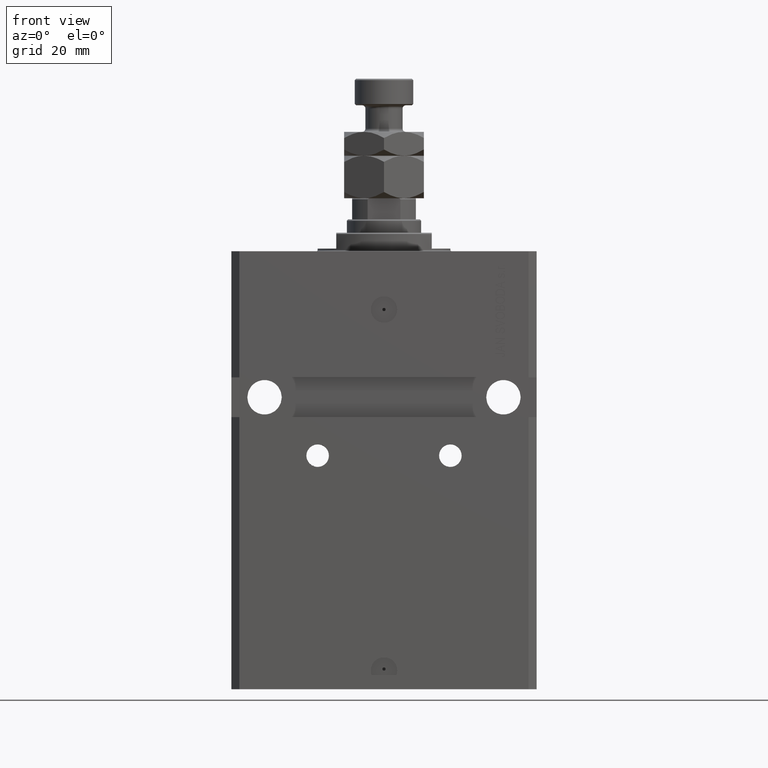
[diagram: clean part render]
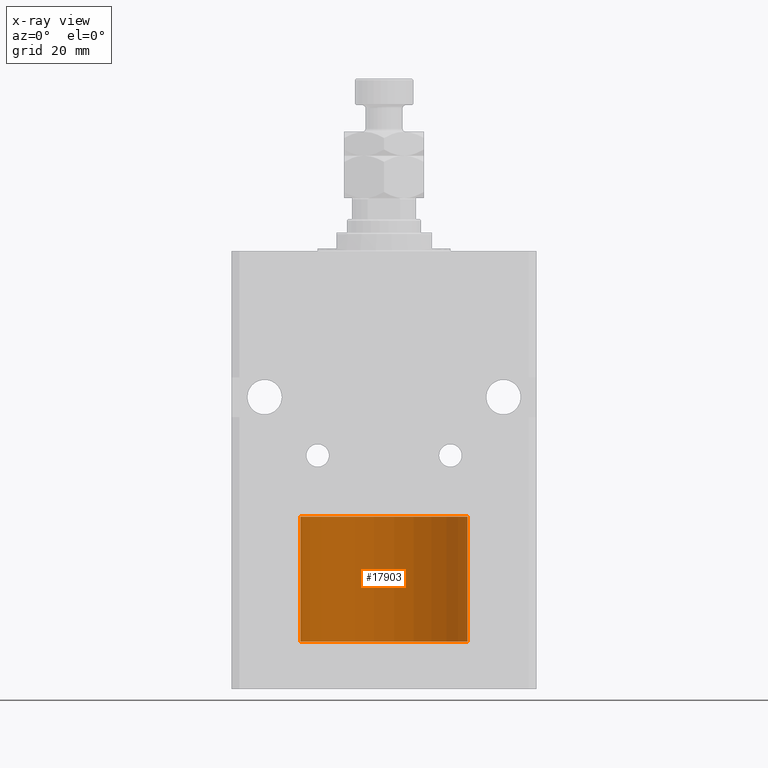
[diagram: x-ray — body ghosted, one internal face saturated and labeled with its STEP entity id]
A machine part, front view, then the same camera in x-ray: the body is ghosted and one INTERNAL B-rep face — a face not visible from any outside direction — is saturated and labeled: STEP entity #17903.
In plain terms, the highlighted cylindrical surface (partial cylindrical patch) has radius 31.5 mm, axis along (-0, -0, -1).
Its self-contained STEP definition (entity closure, byte-faithful):
#1064 = DIRECTION ( 'NONE',  ( 0.000000000000000000, 0.000000000000000000, 1.000000000000000000 ) ) ;
#1076 = CIRCLE ( 'NONE', #25297, 31.50000000000000000 ) ;
#1525 = CYLINDRICAL_SURFACE ( 'NONE', #34729, 31.50000000000000000 ) ;
#2858 = VECTOR ( 'NONE', #10390, 1000.000000000000000 ) ;
#3049 = DIRECTION ( 'NONE',  ( -0.000000000000000000, -0.000000000000000000, -1.000000000000000000 ) ) ;
#5101 = VERTEX_POINT ( 'NONE', #13347 ) ;
#6321 = DIRECTION ( 'NONE',  ( 0.000000000000000000, 0.000000000000000000, 1.000000000000000000 ) ) ;
#6695 = LINE ( 'NONE', #22849, #37619 ) ;
#9582 = DIRECTION ( 'NONE',  ( -1.000000000000000000, 0.000000000000000000, 0.000000000000000000 ) ) ;
#9624 = LINE ( 'NONE', #37992, #2858 ) ;
#10390 = DIRECTION ( 'NONE',  ( -0.000000000000000000, -0.000000000000000000, -1.000000000000000000 ) ) ;
#10554 = ORIENTED_EDGE ( 'NONE', *, *, #32224, .T. ) ;
#11259 = DIRECTION ( 'NONE',  ( 1.000000000000000000, 0.000000000000000000, 0.000000000000000000 ) ) ;
#12393 = CARTESIAN_POINT ( 'NONE',  ( -31.50000000000000000, 0.000000000000000000, 0.000000000000000000 ) ) ;
#13347 = CARTESIAN_POINT ( 'NONE',  ( 31.50000000000000000, 3.857637417314162689E-15, 0.000000000000000000 ) ) ;
#15312 = CIRCLE ( 'NONE', #39428, 31.50000000000000000 ) ;
#17903 = ADVANCED_FACE ( 'NONE', ( #50148 ), #1525, .T. ) ;
#19517 = ORIENTED_EDGE ( 'NONE', *, *, #49913, .F. ) ;
#21103 = CARTESIAN_POINT ( 'NONE',  ( 0.000000000000000000, 0.000000000000000000, 47.10000000000000142 ) ) ;
#21866 = EDGE_LOOP ( 'NONE', ( #27006, #34128, #10554, #19517 ) ) ;
#22849 = CARTESIAN_POINT ( 'NONE',  ( 31.50000000000000000, 3.857637417314162689E-15, 47.10000000000000142 ) ) ;
#25297 = AXIS2_PLACEMENT_3D ( 'NONE', #21103, #1064, #25524 ) ;
#25524 = DIRECTION ( 'NONE',  ( 1.000000000000000000, 0.000000000000000000, 0.000000000000000000 ) ) ;
#27006 = ORIENTED_EDGE ( 'NONE', *, *, #34284, .F. ) ;
#30411 = DIRECTION ( 'NONE',  ( -0.000000000000000000, -0.000000000000000000, -1.000000000000000000 ) ) ;
#32224 = EDGE_CURVE ( 'NONE', #5101, #43249, #15312, .T. ) ;
#33579 = VERTEX_POINT ( 'NONE', #43986 ) ;
#34128 = ORIENTED_EDGE ( 'NONE', *, *, #45633, .T. ) ;
#34284 = EDGE_CURVE ( 'NONE', #33579, #48854, #1076, .T. ) ;
#34729 = AXIS2_PLACEMENT_3D ( 'NONE', #37954, #30411, #9582 ) ;
#37619 = VECTOR ( 'NONE', #3049, 1000.000000000000000 ) ;
#37954 = CARTESIAN_POINT ( 'NONE',  ( 0.000000000000000000, 0.000000000000000000, 47.10000000000000142 ) ) ;
#37992 = CARTESIAN_POINT ( 'NONE',  ( -31.50000000000000000, 0.000000000000000000, 47.10000000000000142 ) ) ;
#38297 = CARTESIAN_POINT ( 'NONE',  ( -31.50000000000000000, 0.000000000000000000, 47.10000000000000142 ) ) ;
#39428 = AXIS2_PLACEMENT_3D ( 'NONE', #41976, #6321, #11259 ) ;
#41976 = CARTESIAN_POINT ( 'NONE',  ( 0.000000000000000000, 0.000000000000000000, 0.000000000000000000 ) ) ;
#43249 = VERTEX_POINT ( 'NONE', #12393 ) ;
#43986 = CARTESIAN_POINT ( 'NONE',  ( 31.50000000000000000, 3.857637417314162689E-15, 47.10000000000000142 ) ) ;
#45633 = EDGE_CURVE ( 'NONE', #33579, #5101, #6695, .T. ) ;
#48854 = VERTEX_POINT ( 'NONE', #38297 ) ;
#49913 = EDGE_CURVE ( 'NONE', #48854, #43249, #9624, .T. ) ;
#50148 = FACE_OUTER_BOUND ( 'NONE', #21866, .T. ) ;